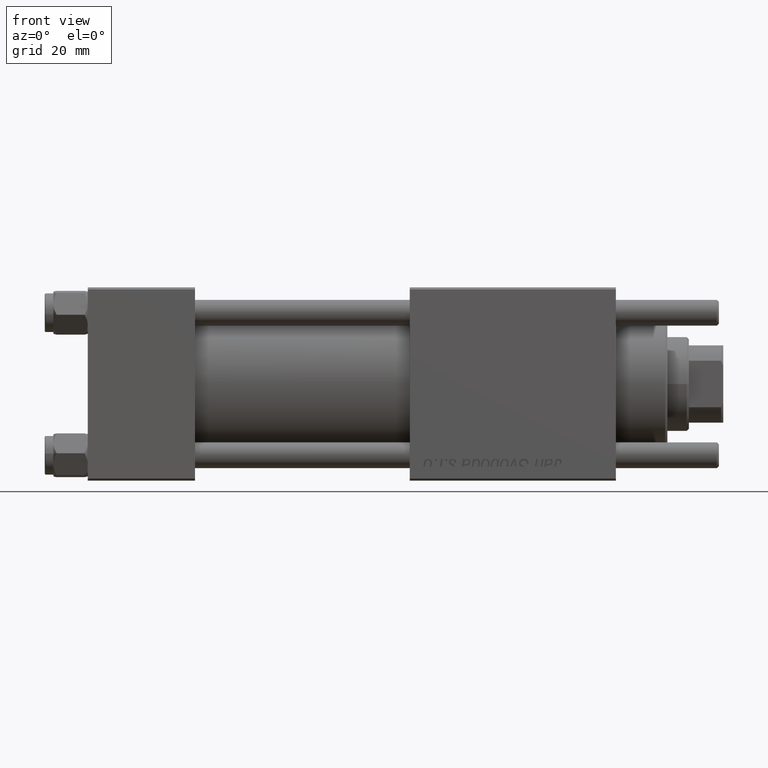
[diagram: clean part render]
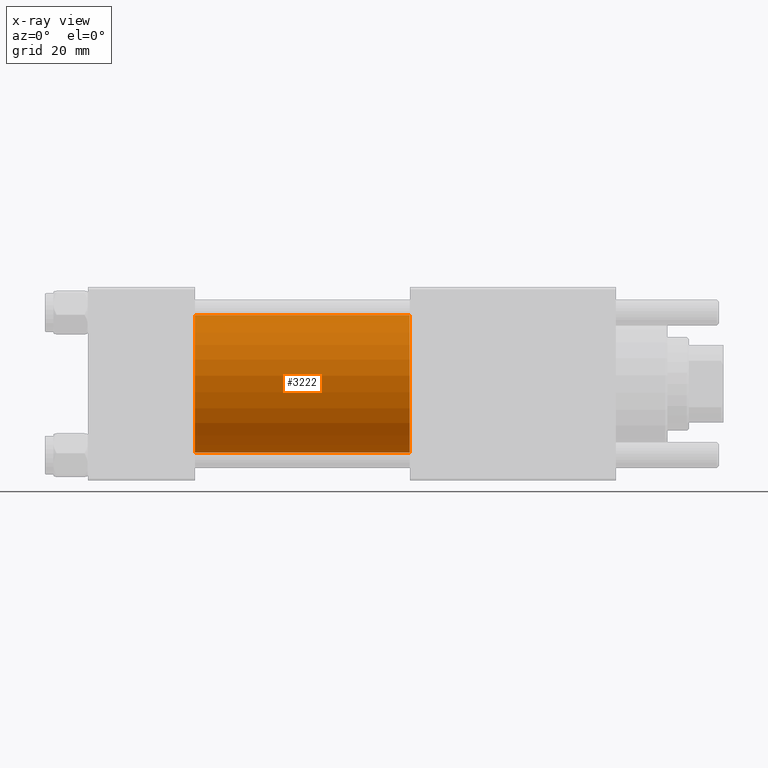
[diagram: x-ray — body ghosted, one internal face saturated and labeled with its STEP entity id]
A machine part, front view, then the same camera in x-ray: the body is ghosted and one INTERNAL B-rep face — a face not visible from any outside direction — is saturated and labeled: STEP entity #3222.
In plain terms, the highlighted cylindrical surface (partial cylindrical patch) has radius 16 mm, axis along (-1, -0, -0).
Its self-contained STEP definition (entity closure, byte-faithful):
#471 = CIRCLE ( 'NONE', #45441, 16.00000000000000000 ) ;
#1667 = EDGE_LOOP ( 'NONE', ( #10958, #9715, #7999, #52509 ) ) ;
#2934 = DIRECTION ( 'NONE',  ( 0.000000000000000000, 0.000000000000000000, -1.000000000000000000 ) ) ;
#3222 = ADVANCED_FACE ( 'NONE', ( #36335 ), #44949, .F. ) ;
#7999 = ORIENTED_EDGE ( 'NONE', *, *, #37838, .F. ) ;
#8250 = CARTESIAN_POINT ( 'NONE',  ( 75.00000000000001421, -6.426503353294456087E-16, -16.00000000000000000 ) ) ;
#9068 = EDGE_CURVE ( 'NONE', #38195, #35348, #39657, .T. ) ;
#9715 = ORIENTED_EDGE ( 'NONE', *, *, #44362, .T. ) ;
#10059 = VECTOR ( 'NONE', #52866, 1000.000000000000000 ) ;
#10958 = ORIENTED_EDGE ( 'NONE', *, *, #22543, .T. ) ;
#13036 = CARTESIAN_POINT ( 'NONE',  ( 75.00000000000001421, -6.426503353294456087E-16, -16.00000000000000000 ) ) ;
#13497 = AXIS2_PLACEMENT_3D ( 'NONE', #17636, #40636, #48404 ) ;
#17636 = CARTESIAN_POINT ( 'NONE',  ( 75.00000000000001421, -2.602085213965210642E-15, 0.000000000000000000 ) ) ;
#22543 = EDGE_CURVE ( 'NONE', #38195, #36022, #43479, .T. ) ;
#26053 = AXIS2_PLACEMENT_3D ( 'NONE', #46858, #51451, #2934 ) ;
#26433 = CARTESIAN_POINT ( 'NONE',  ( 75.00000000000001421, -2.602085213965210642E-15, 16.00000000000000000 ) ) ;
#27544 = CARTESIAN_POINT ( 'NONE',  ( 25.00000000000000000, -6.426503353294456087E-16, -16.00000000000000000 ) ) ;
#29158 = DIRECTION ( 'NONE',  ( 0.000000000000000000, 0.000000000000000000, -1.000000000000000000 ) ) ;
#34084 = DIRECTION ( 'NONE',  ( -1.000000000000000000, -0.000000000000000000, -0.000000000000000000 ) ) ;
#35230 = LINE ( 'NONE', #8250, #47643 ) ;
#35348 = VERTEX_POINT ( 'NONE', #49486 ) ;
#36022 = VERTEX_POINT ( 'NONE', #13036 ) ;
#36335 = FACE_OUTER_BOUND ( 'NONE', #1667, .T. ) ;
#36754 = CARTESIAN_POINT ( 'NONE',  ( 75.00000000000001421, -2.602085213965210642E-15, 16.00000000000000000 ) ) ;
#37838 = EDGE_CURVE ( 'NONE', #35348, #51590, #471, .T. ) ;
#38195 = VERTEX_POINT ( 'NONE', #36754 ) ;
#39657 = LINE ( 'NONE', #26433, #10059 ) ;
#40636 = DIRECTION ( 'NONE',  ( -1.000000000000000000, -0.000000000000000000, -0.000000000000000000 ) ) ;
#43479 = CIRCLE ( 'NONE', #26053, 16.00000000000000000 ) ;
#44362 = EDGE_CURVE ( 'NONE', #36022, #51590, #35230, .T. ) ;
#44949 = CYLINDRICAL_SURFACE ( 'NONE', #13497, 16.00000000000000000 ) ;
#45441 = AXIS2_PLACEMENT_3D ( 'NONE', #50693, #47248, #29158 ) ;
#46858 = CARTESIAN_POINT ( 'NONE',  ( 75.00000000000001421, -2.602085213965210642E-15, 0.000000000000000000 ) ) ;
#47248 = DIRECTION ( 'NONE',  ( 1.000000000000000000, 0.000000000000000000, 0.000000000000000000 ) ) ;
#47643 = VECTOR ( 'NONE', #34084, 1000.000000000000000 ) ;
#48404 = DIRECTION ( 'NONE',  ( 0.000000000000000000, 0.000000000000000000, 1.000000000000000000 ) ) ;
#49486 = CARTESIAN_POINT ( 'NONE',  ( 25.00000000000000000, -2.602085213965210642E-15, 16.00000000000000000 ) ) ;
#50693 = CARTESIAN_POINT ( 'NONE',  ( 25.00000000000000000, -2.602085213965210642E-15, 0.000000000000000000 ) ) ;
#51451 = DIRECTION ( 'NONE',  ( 1.000000000000000000, 0.000000000000000000, 0.000000000000000000 ) ) ;
#51590 = VERTEX_POINT ( 'NONE', #27544 ) ;
#52509 = ORIENTED_EDGE ( 'NONE', *, *, #9068, .F. ) ;
#52866 = DIRECTION ( 'NONE',  ( -1.000000000000000000, -0.000000000000000000, -0.000000000000000000 ) ) ;